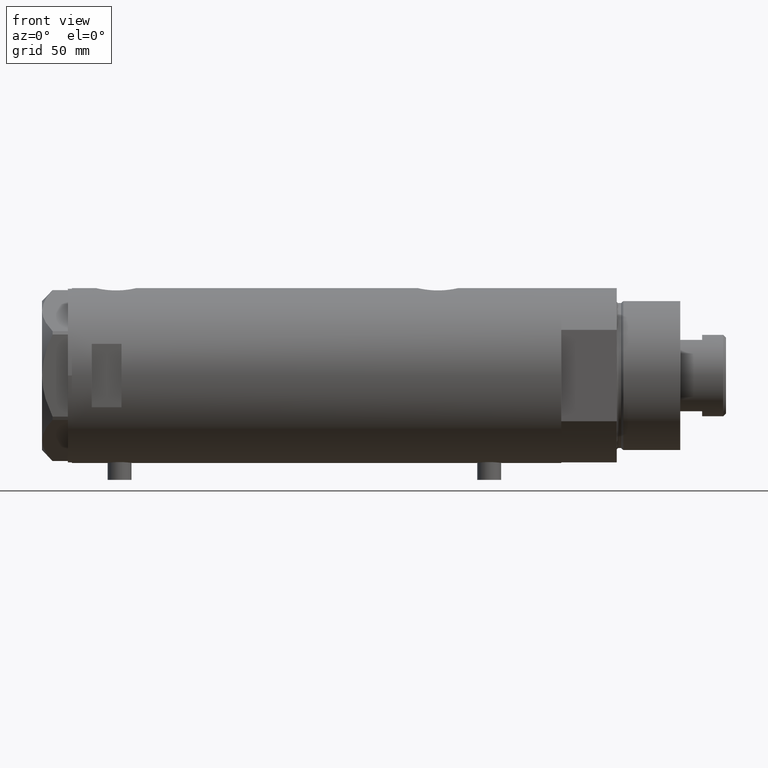
[diagram: clean part render]
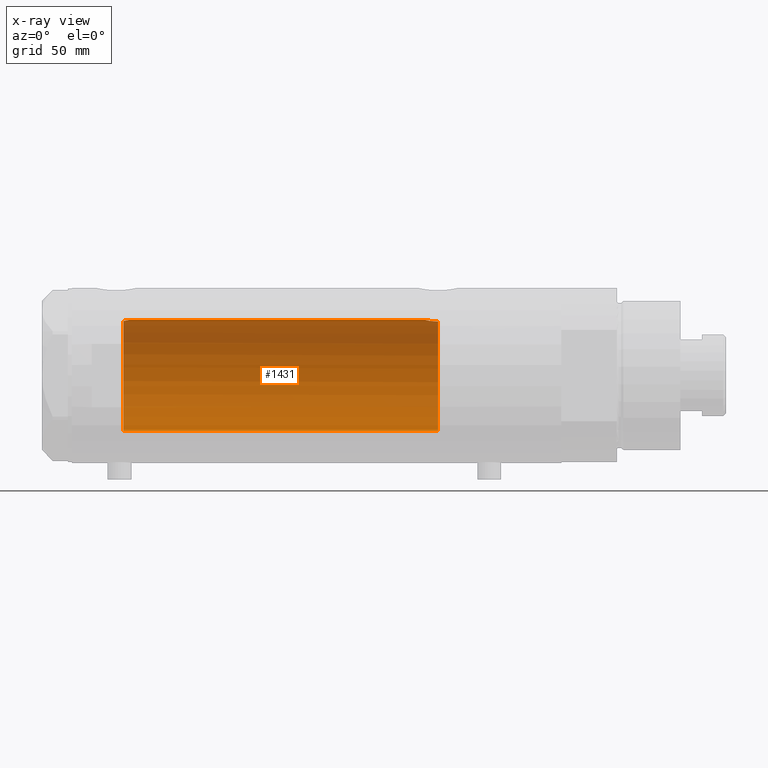
[diagram: x-ray — body ghosted, one internal face saturated and labeled with its STEP entity id]
A machine part, front view, then the same camera in x-ray: the body is ghosted and one INTERNAL B-rep face — a face not visible from any outside direction — is saturated and labeled: STEP entity #1431.
In plain terms, the highlighted cylindrical surface (partial cylindrical patch) has radius 28 mm, axis along (1, 0, -0).
Its self-contained STEP definition (entity closure, byte-faithful):
#28 = ORIENTED_EDGE ( 'NONE', *, *, #76, .F. ) ;
#76 = EDGE_CURVE ( 'NONE', #3680, #3227, #145, .T. ) ;
#145 = B_SPLINE_CURVE_WITH_KNOTS ( 'NONE', 3,
 ( #4458, #277, #3426, #3852, #657, #230, #4502, #2052, #1661, #979, #3765, #4141, #4165, #2716, #2809, #1021, #4191, #3834, #3406, #2411, #3445, #2072, #4437, #3491 ),
 .UNSPECIFIED., .F., .F.,
 ( 4, 2, 2, 2, 2, 2, 2, 2, 2, 2, 2, 4 ),
 ( 0.02064447638625017609, 0.02194711032043802218, 0.02324974425462586480, 0.02390106122171978612, 0.02455237818881370743, 0.02585501212300156393, 0.02650632909009548177, 0.02715764605718940308, 0.02846027999137725611, 0.02976291392556511262, 0.03041423089265904087, 0.03106554785975296912 ),
 .UNSPECIFIED. ) ;
#146 = CARTESIAN_POINT ( 'NONE',  ( 27.77752716845531822, 3.554080867558359280, 95.33702809021860958 ) ) ;
#169 = CARTESIAN_POINT ( 'NONE',  ( 28.00000000000000000, 3.429011037612589276E-15, 123.2000000000000028 ) ) ;
#230 = CARTESIAN_POINT ( 'NONE',  ( 27.86588799758911605, 2.744542339393446717, -55.11578757899567904 ) ) ;
#236 = EDGE_CURVE ( 'NONE', #3326, #671, #3883, .T. ) ;
#245 = CARTESIAN_POINT ( 'NONE',  ( 0.000000000000000000, 0.000000000000000000, 123.2000000000000028 ) ) ;
#265 = CARTESIAN_POINT ( 'NONE',  ( 28.00000000000000000, 0.000000000000000000, 94.32000000000000739 ) ) ;
#277 = CARTESIAN_POINT ( 'NONE',  ( 28.00000000000000711, 0.4344375524774768960, -54.52000000000001734 ) ) ;
#303 = CARTESIAN_POINT ( 'NONE',  ( 27.21605408577812568, 6.579240077698938371, -61.20000000000000284 ) ) ;
#493 = CARTESIAN_POINT ( 'NONE',  ( 27.59012538417911031, 4.776664836238046163, 96.36675298569846859 ) ) ;
#549 = ORIENTED_EDGE ( 'NONE', *, *, #236, .F. ) ;
#657 = CARTESIAN_POINT ( 'NONE',  ( 27.92057377942992602, 2.145335874642055440, -54.86449057456584910 ) ) ;
#658 = DIRECTION ( 'NONE',  ( 1.000000000000000000, 0.000000000000000000, 0.000000000000000000 ) ) ;
#671 = VERTEX_POINT ( 'NONE', #265 ) ;
#781 = DIRECTION ( 'NONE',  ( -1.000000000000000000, 0.000000000000000000, 0.000000000000000000 ) ) ;
#830 = CARTESIAN_POINT ( 'NONE',  ( 27.49602064413222635, 5.290780227724656726, 96.97882924682042471 ) ) ;
#838 = DIRECTION ( 'NONE',  ( 0.000000000000000000, 0.000000000000000000, -1.000000000000000000 ) ) ;
#942 = FACE_OUTER_BOUND ( 'NONE', #993, .T. ) ;
#979 = CARTESIAN_POINT ( 'NONE',  ( 27.70785054350542964, 4.050475470458768434, -55.89631279652926565 ) ) ;
#993 = EDGE_LOOP ( 'NONE', ( #1769, #549, #1153, #2707, #3655, #28 ) ) ;
#1021 = CARTESIAN_POINT ( 'NONE',  ( 27.40633791352276916, 5.740289853568789624, -57.85469713442368800 ) ) ;
#1048 = DIRECTION ( 'NONE',  ( 0.000000000000000000, 0.000000000000000000, 1.000000000000000000 ) ) ;
#1101 = CARTESIAN_POINT ( 'NONE',  ( 27.85549123290575579, 2.850830541327404877, 94.96370468682906107 ) ) ;
#1153 = ORIENTED_EDGE ( 'NONE', *, *, #2216, .T. ) ;
#1277 = DIRECTION ( 'NONE',  ( -1.000000000000000000, 0.000000000000000000, 0.000000000000000000 ) ) ;
#1284 = LINE ( 'NONE', #2728, #3314 ) ;
#1431 = ADVANCED_FACE ( 'NONE', ( #942 ), #3757, .F. ) ;
#1487 = CARTESIAN_POINT ( 'NONE',  ( -28.00000000000000000, 0.000000000000000000, -61.20000000000000284 ) ) ;
#1510 = CARTESIAN_POINT ( 'NONE',  ( -28.00000000000000000, 0.000000000000000000, 97.20000000000000284 ) ) ;
#1631 = CARTESIAN_POINT ( 'NONE',  ( 28.00000000000000355, 0.5407212781083803321, 94.32000000000002160 ) ) ;
#1632 = DIRECTION ( 'NONE',  ( -0.000000000000000000, -0.000000000000000000, -1.000000000000000000 ) ) ;
#1650 = DIRECTION ( 'NONE',  ( -0.000000000000000000, -0.000000000000000000, -1.000000000000000000 ) ) ;
#1661 = CARTESIAN_POINT ( 'NONE',  ( 27.77951318121830582, 3.511620812961470772, -55.53115835401438005 ) ) ;
#1769 = ORIENTED_EDGE ( 'NONE', *, *, #2612, .F. ) ;
#1892 = VERTEX_POINT ( 'NONE', #1510 ) ;
#1895 = CARTESIAN_POINT ( 'NONE',  ( 27.62184089756353700, 4.590621453796800644, 96.17847296394720047 ) ) ;
#1971 = CIRCLE ( 'NONE', #4543, 28.00000000000000000 ) ;
#2052 = CARTESIAN_POINT ( 'NONE',  ( 27.80267334785860101, 3.323944738624905693, -55.41709962017579727 ) ) ;
#2072 = CARTESIAN_POINT ( 'NONE',  ( 27.21712162367727927, 6.574850051620745539, -60.76016190408789441 ) ) ;
#2186 = AXIS2_PLACEMENT_3D ( 'NONE', #245, #4449, #781 ) ;
#2201 = VECTOR ( 'NONE', #1650, 1000.000000000000000 ) ;
#2216 = EDGE_CURVE ( 'NONE', #3326, #1892, #1971, .T. ) ;
#2220 = CARTESIAN_POINT ( 'NONE',  ( 27.52730847012277948, 5.126288527110444804, 96.76623399461909969 ) ) ;
#2263 = CIRCLE ( 'NONE', #2951, 28.00000000000000000 ) ;
#2297 = CARTESIAN_POINT ( 'NONE',  ( 27.98435453724556510, 1.072101232728050579, 94.38566097371688102 ) ) ;
#2332 = VERTEX_POINT ( 'NONE', #1487 ) ;
#2349 = CARTESIAN_POINT ( 'NONE',  ( 27.93969014165221765, 1.855286977351521704, 94.58124112405663197 ) ) ;
#2411 = CARTESIAN_POINT ( 'NONE',  ( 27.23306259439848986, 6.508606919525671941, -60.10931986330979981 ) ) ;
#2413 = CARTESIAN_POINT ( 'NONE',  ( 28.00000000000000000, 8.058211040235281960E-16, -54.52000000000001023 ) ) ;
#2421 = CARTESIAN_POINT ( 'NONE',  ( 27.46622653369042411, 5.441176343402230664, 97.20000000000000284 ) ) ;
#2612 = EDGE_CURVE ( 'NONE', #671, #3680, #4406, .T. ) ;
#2707 = ORIENTED_EDGE ( 'NONE', *, *, #2713, .T. ) ;
#2713 = EDGE_CURVE ( 'NONE', #1892, #2332, #1284, .T. ) ;
#2716 = CARTESIAN_POINT ( 'NONE',  ( 27.50226589723265391, 5.257822516958269965, -57.13779315141980675 ) ) ;
#2728 = CARTESIAN_POINT ( 'NONE',  ( -28.00000000000000000, 0.000000000000000000, 123.2000000000000028 ) ) ;
#2809 = CARTESIAN_POINT ( 'NONE',  ( 27.47751794615729537, 5.385218554237039434, -57.31285718566400789 ) ) ;
#2951 = AXIS2_PLACEMENT_3D ( 'NONE', #3736, #838, #1277 ) ;
#3061 = CARTESIAN_POINT ( 'NONE',  ( 27.92131942247208798, 2.112374604004425116, 94.66259974202708349 ) ) ;
#3100 = EDGE_CURVE ( 'NONE', #2332, #3227, #2263, .T. ) ;
#3227 = VERTEX_POINT ( 'NONE', #303 ) ;
#3314 = VECTOR ( 'NONE', #1632, 1000.000000000000000 ) ;
#3315 = CARTESIAN_POINT ( 'NONE',  ( 27.71586615897684780, 3.998795151939225523, 95.64767395625746360 ) ) ;
#3326 = VERTEX_POINT ( 'NONE', #2421 ) ;
#3406 = CARTESIAN_POINT ( 'NONE',  ( 27.26132124301010506, 6.389601967157234164, -59.46983701249833132 ) ) ;
#3426 = CARTESIAN_POINT ( 'NONE',  ( 27.98989376185446076, 0.8673308354119261265, -54.56259295538818321 ) ) ;
#3445 = CARTESIAN_POINT ( 'NONE',  ( 27.22604017942136778, 6.537820648187905981, -60.32472952793342102 ) ) ;
#3491 = CARTESIAN_POINT ( 'NONE',  ( 27.21605408577812568, 6.579240077698938371, -61.20000000000000284 ) ) ;
#3655 = ORIENTED_EDGE ( 'NONE', *, *, #3100, .T. ) ;
#3680 = VERTEX_POINT ( 'NONE', #2413 ) ;
#3736 = CARTESIAN_POINT ( 'NONE',  ( 0.000000000000000000, 0.000000000000000000, -61.20000000000000284 ) ) ;
#3757 = CYLINDRICAL_SURFACE ( 'NONE', #2186, 28.00000000000000000 ) ;
#3765 = CARTESIAN_POINT ( 'NONE',  ( 27.65669575048418594, 4.382057994727783345, -56.17233761202034259 ) ) ;
#3834 = CARTESIAN_POINT ( 'NONE',  ( 27.28989504668422228, 6.268149480003692098, -59.05093353430706316 ) ) ;
#3852 = CARTESIAN_POINT ( 'NONE',  ( 27.94984428957576128, 1.729919005741099802, -54.73624844305086157 ) ) ;
#3883 = B_SPLINE_CURVE_WITH_KNOTS ( 'NONE', 3,
 ( #3981, #830, #2220, #493, #1895, #3315, #146, #1101, #3918, #3061, #2349, #2297, #1631, #4019 ),
 .UNSPECIFIED., .F., .F.,
 ( 4, 2, 2, 2, 2, 2, 4 ),
 ( 0.03488855882532450325, 0.03568791961119571754, 0.03648728039706693183, 0.03808600196880933264, 0.03888536275468051917, 0.03968472354055171264, 0.04128344511229409958 ),
 .UNSPECIFIED. ) ;
#3918 = CARTESIAN_POINT ( 'NONE',  ( 27.87926027245440608, 2.609415915507860895, 94.85365920364242243 ) ) ;
#3981 = CARTESIAN_POINT ( 'NONE',  ( 27.46622653369042411, 5.441176343402230664, 97.20000000000000284 ) ) ;
#4019 = CARTESIAN_POINT ( 'NONE',  ( 28.00000000000000000, 0.000000000000000000, 94.32000000000000739 ) ) ;
#4141 = CARTESIAN_POINT ( 'NONE',  ( 27.57921322802619812, 4.838471943606454495, -56.63541026849051718 ) ) ;
#4165 = CARTESIAN_POINT ( 'NONE',  ( 27.55311958554908713, 4.984468698502469763, -56.79897075987406652 ) ) ;
#4191 = CARTESIAN_POINT ( 'NONE',  ( 27.36295003163000672, 5.941130795499224959, -58.23794896005178856 ) ) ;
#4406 = LINE ( 'NONE', #169, #2201 ) ;
#4437 = CARTESIAN_POINT ( 'NONE',  ( 27.21525044627863466, 6.582564457995937701, -60.98128103916471332 ) ) ;
#4449 = DIRECTION ( 'NONE',  ( -0.000000000000000000, -0.000000000000000000, -1.000000000000000000 ) ) ;
#4458 = CARTESIAN_POINT ( 'NONE',  ( 28.00000000000000000, 8.058211040235281960E-16, -54.52000000000001023 ) ) ;
#4482 = CARTESIAN_POINT ( 'NONE',  ( 0.000000000000000000, 0.000000000000000000, 97.20000000000000284 ) ) ;
#4502 = CARTESIAN_POINT ( 'NONE',  ( 27.84585502960274539, 2.940342086136627842, -55.20946914370767189 ) ) ;
#4543 = AXIS2_PLACEMENT_3D ( 'NONE', #4482, #1048, #658 ) ;